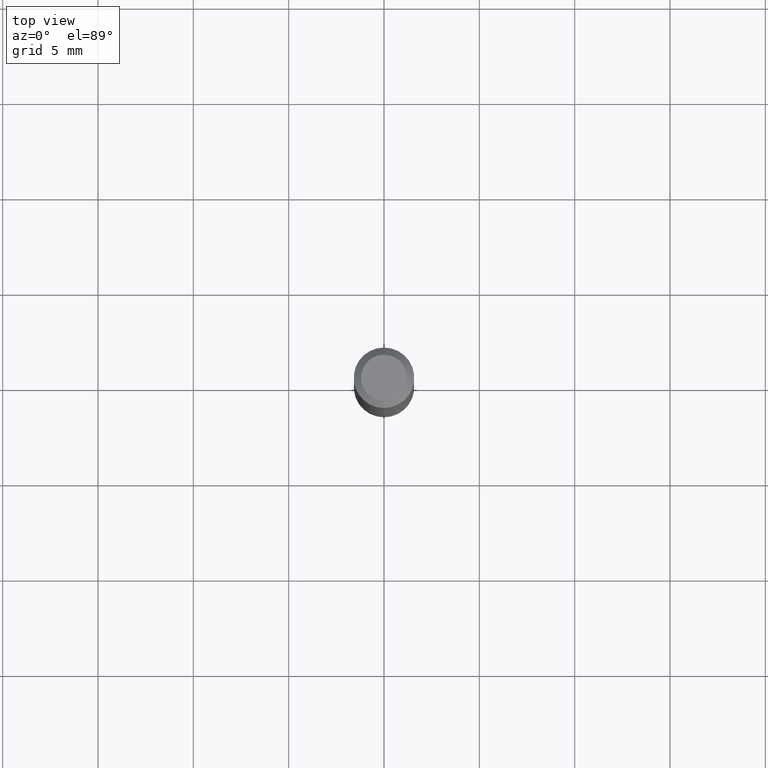
[diagram: clean part render]
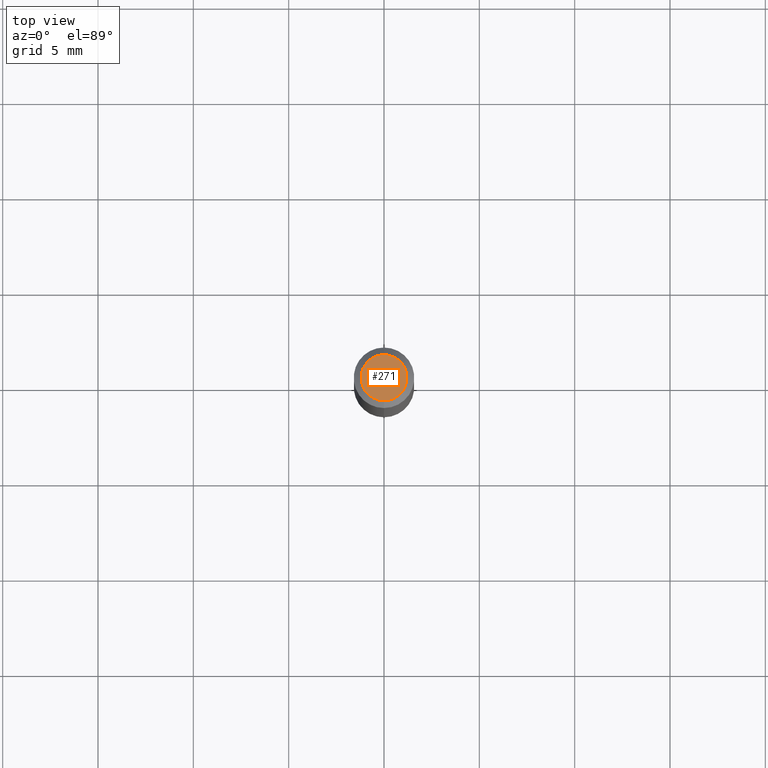
[diagram: same view with one face highlighted and labeled with its STEP entity id]
A machine part, top view. The second image highlights one B-rep face of the part: STEP entity #271.
In plain terms, the highlighted planar face has unit normal (0, -0, -1).
Its self-contained STEP definition (entity closure, byte-faithful):
#32 = DIRECTION ( 'NONE',  ( -2.445421247527529445E-29, 3.491549445547709881E-15, 1.000000000000000000 ) ) ;
#60 = AXIS2_PLACEMENT_3D ( 'NONE', #71, #32, #155 ) ;
#64 = PLANE ( 'NONE',  #240 ) ;
#71 = CARTESIAN_POINT ( 'NONE',  ( 7.069878102696338504E-46, -1.009430542673053310E-31, -2.891067585940220905E-17 ) ) ;
#134 = EDGE_CURVE ( 'NONE', #446, #322, #324, .T. ) ;
#144 = DIRECTION ( 'NONE',  ( 2.445421247527528604E-29, -3.491549445547710276E-15, -1.000000000000000000 ) ) ;
#155 = DIRECTION ( 'NONE',  ( -6.982962677686266711E-15, -1.000000000000000000, 3.491549445547709881E-15 ) ) ;
#163 = AXIS2_PLACEMENT_3D ( 'NONE', #506, #396, #515 ) ;
#179 = DIRECTION ( 'NONE',  ( 6.982962677686265922E-15, 1.000000000000000000, -3.491549445547710276E-15 ) ) ;
#240 = AXIS2_PLACEMENT_3D ( 'NONE', #346, #144, #179 ) ;
#269 = CIRCLE ( 'NONE', #60, 0.04749999999999999362 ) ;
#271 = ADVANCED_FACE ( 'NONE', ( #514 ), #64, .F. ) ;
#300 = CARTESIAN_POINT ( 'NONE',  ( -3.773273898774340269E-16, -0.04749999999999999362, 1.369379228041140308E-16 ) ) ;
#322 = VERTEX_POINT ( 'NONE', #430 ) ;
#324 = CIRCLE ( 'NONE', #163, 0.04749999999999999362 ) ;
#346 = CARTESIAN_POINT ( 'NONE',  ( 3.316907271900976096E-16, 0.04749999999999999362, -1.803039365932173043E-16 ) ) ;
#358 = EDGE_LOOP ( 'NONE', ( #404, #418 ) ) ;
#396 = DIRECTION ( 'NONE',  ( -2.445421247527529445E-29, 3.491549445547709881E-15, 1.000000000000000000 ) ) ;
#404 = ORIENTED_EDGE ( 'NONE', *, *, #477, .T. ) ;
#418 = ORIENTED_EDGE ( 'NONE', *, *, #134, .T. ) ;
#430 = CARTESIAN_POINT ( 'NONE',  ( 3.840629472727447874E-16, 0.04749999999999999362, -1.947592745229183872E-16 ) ) ;
#446 = VERTEX_POINT ( 'NONE', #300 ) ;
#477 = EDGE_CURVE ( 'NONE', #322, #446, #269, .T. ) ;
#506 = CARTESIAN_POINT ( 'NONE',  ( 7.069878102696338504E-46, -1.009430542673053310E-31, -2.891067585940220905E-17 ) ) ;
#514 = FACE_OUTER_BOUND ( 'NONE', #358, .T. ) ;
#515 = DIRECTION ( 'NONE',  ( -6.982962677686266711E-15, -1.000000000000000000, 3.491549445547709881E-15 ) ) ;